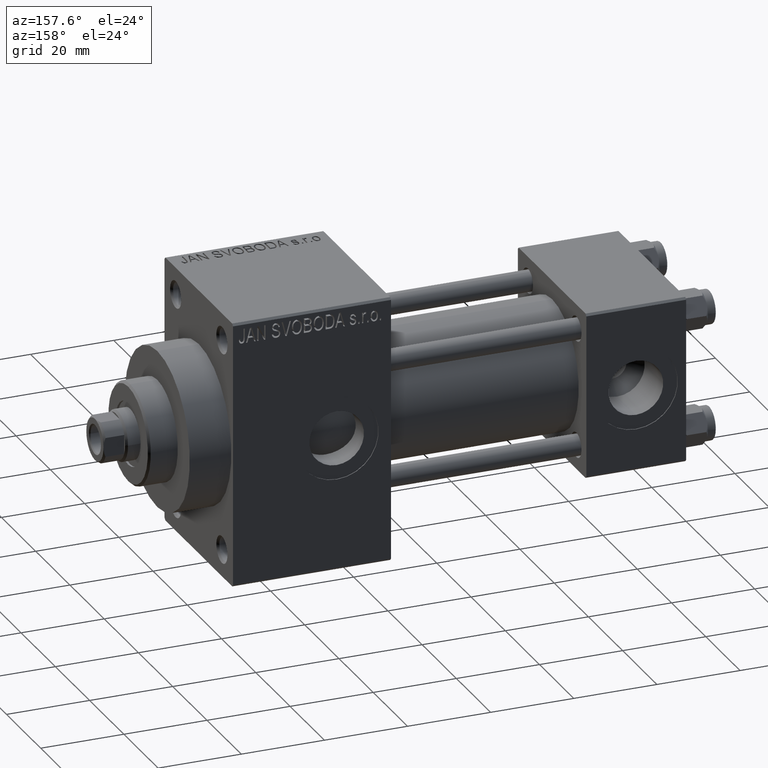
[diagram: clean part render]
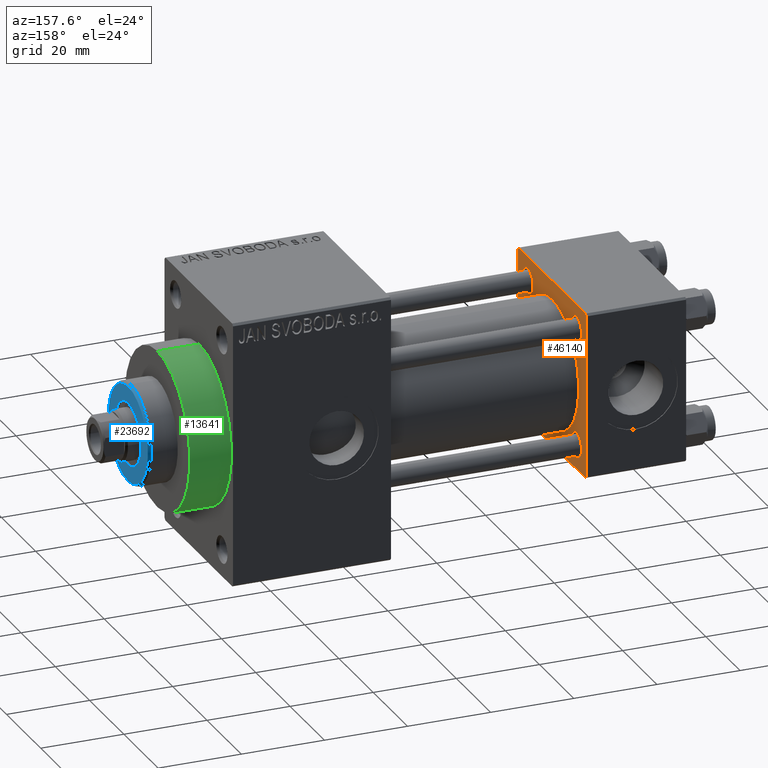
[diagram: same view with three faces highlighted in distinct colors, each labeled with its STEP entity id]
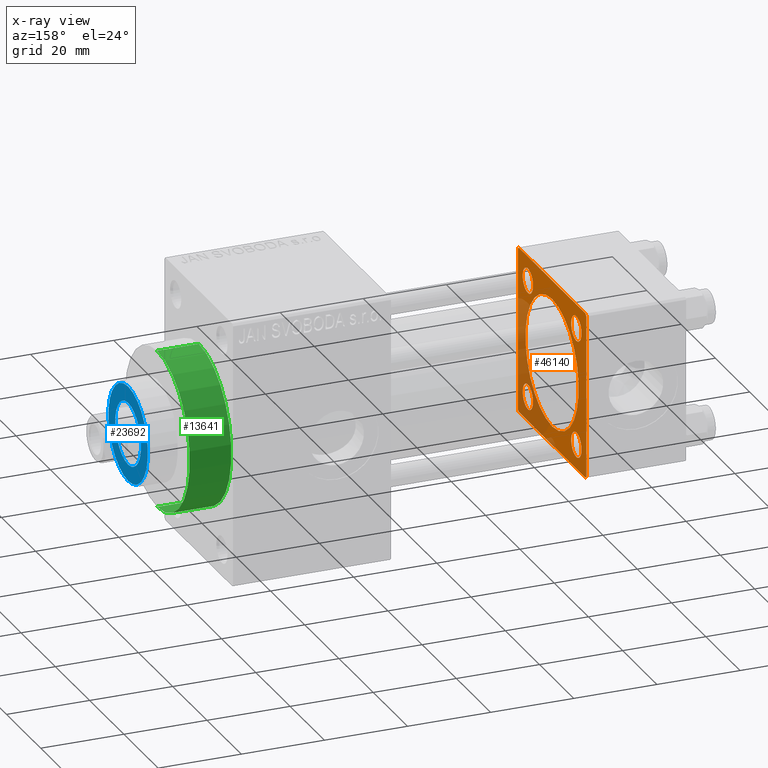
[diagram: x-ray of the same camera — body ghosted, the three highlighted faces saturated]
A machine part, auxiliary view with three faces highlighted in distinct colors.
The next image is the same camera in x-ray (body ghosted, the three faces saturated) — at least one of them is partly hidden behind the body in this view.
Their STEP definitions:

[orange] entity #46140 — the highlighted planar face has unit normal (-1, 0, 0).
#642 = AXIS2_PLACEMENT_3D ( 'NONE', #26358, #27093, #34273 ) ;
#876 = CARTESIAN_POINT ( 'NONE',  ( 24.00000000000000000, -19.50000000000000711, -20.00000000000000000 ) ) ;
#1074 = EDGE_LOOP ( 'NONE', ( #11995, #11273, #36563, #30439, #26081, #22491, #14580, #16509 ) ) ;
#1090 = EDGE_CURVE ( 'NONE', #27260, #27314, #11283, .T. ) ;
#1528 = LINE ( 'NONE', #31810, #29205 ) ;
#1690 = CIRCLE ( 'NONE', #36561, 2.999999999999976463 ) ;
#1835 = EDGE_CURVE ( 'NONE', #24379, #48392, #8549, .T. ) ;
#2393 = EDGE_CURVE ( 'NONE', #18739, #47857, #23599, .T. ) ;
#2764 = ORIENTED_EDGE ( 'NONE', *, *, #5907, .T. ) ;
#3110 = FACE_OUTER_BOUND ( 'NONE', #1074, .T. ) ;
#3144 = ORIENTED_EDGE ( 'NONE', *, *, #14088, .T. ) ;
#3854 = EDGE_LOOP ( 'NONE', ( #28974, #40768 ) ) ;
#4054 = CARTESIAN_POINT ( 'NONE',  ( 24.00000000000000000, 20.00000000000000000, -19.50000000000002132 ) ) ;
#4097 = VERTEX_POINT ( 'NONE', #39836 ) ;
#4169 = CIRCLE ( 'NONE', #25569, 2.999999999999945377 ) ;
#4530 = LINE ( 'NONE', #5020, #5156 ) ;
#5020 = CARTESIAN_POINT ( 'NONE',  ( 24.00000000000000000, -20.00000000000000355, 19.99999999999998934 ) ) ;
#5156 = VECTOR ( 'NONE', #42472, 1000.000000000000000 ) ;
#5586 = DIRECTION ( 'NONE',  ( 0.000000000000000000, 0.000000000000000000, 1.000000000000000000 ) ) ;
#5655 = CARTESIAN_POINT ( 'NONE',  ( 24.00000000000000000, -14.14999999999999503, 17.14999999999998082 ) ) ;
#5879 = DIRECTION ( 'NONE',  ( -1.000000000000000000, -0.000000000000000000, -0.000000000000000000 ) ) ;
#5907 = EDGE_CURVE ( 'NONE', #25212, #13691, #46703, .T. ) ;
#6122 = DIRECTION ( 'NONE',  ( 0.000000000000000000, 0.000000000000000000, 1.000000000000000000 ) ) ;
#6776 = DIRECTION ( 'NONE',  ( 0.000000000000000000, 0.000000000000000000, 1.000000000000000000 ) ) ;
#7031 = CARTESIAN_POINT ( 'NONE',  ( 24.00000000000000000, -14.14999999999999503, 14.15000000000000391 ) ) ;
#7079 = DIRECTION ( 'NONE',  ( -1.000000000000000000, 0.000000000000000000, -0.000000000000000000 ) ) ;
#7548 = CARTESIAN_POINT ( 'NONE',  ( 24.00000000000000000, -20.00000000000000355, 19.49999999999998224 ) ) ;
#7880 = ORIENTED_EDGE ( 'NONE', *, *, #31742, .T. ) ;
#8071 = ORIENTED_EDGE ( 'NONE', *, *, #16762, .T. ) ;
#8549 = CIRCLE ( 'NONE', #13294, 2.999999999999976463 ) ;
#8653 = CARTESIAN_POINT ( 'NONE',  ( 24.00000000000000000, -14.14999999999999503, -14.15000000000000391 ) ) ;
#8922 = VECTOR ( 'NONE', #12259, 1000.000000000000000 ) ;
#8928 = EDGE_CURVE ( 'NONE', #44882, #40334, #38853, .T. ) ;
#9069 = VERTEX_POINT ( 'NONE', #31996 ) ;
#9700 = CARTESIAN_POINT ( 'NONE',  ( 24.00000000000000000, -20.00000000000000000, -19.49999999999999645 ) ) ;
#10384 = DIRECTION ( 'NONE',  ( 0.000000000000000000, -1.000000000000000000, -2.602085213965210149E-16 ) ) ;
#10535 = EDGE_CURVE ( 'NONE', #43814, #18709, #24575, .T. ) ;
#10545 = DIRECTION ( 'NONE',  ( -1.000000000000000000, -0.000000000000000000, -0.000000000000000000 ) ) ;
#10613 = DIRECTION ( 'NONE',  ( -1.000000000000000000, -0.000000000000000000, -0.000000000000000000 ) ) ;
#10686 = AXIS2_PLACEMENT_3D ( 'NONE', #7031, #38019, #19175 ) ;
#10810 = FACE_BOUND ( 'NONE', #17473, .T. ) ;
#10826 = ORIENTED_EDGE ( 'NONE', *, *, #2393, .T. ) ;
#11273 = ORIENTED_EDGE ( 'NONE', *, *, #22901, .T. ) ;
#11283 = LINE ( 'NONE', #7548, #30726 ) ;
#11428 = DIRECTION ( 'NONE',  ( -1.000000000000000000, -0.000000000000000000, -0.000000000000000000 ) ) ;
#11464 = CARTESIAN_POINT ( 'NONE',  ( 24.00000000000000000, 14.14999999999999858, 17.14999999999994884 ) ) ;
#11626 = CARTESIAN_POINT ( 'NONE',  ( 24.00000000000000000, 20.00000000000000000, -20.00000000000000711 ) ) ;
#11995 = ORIENTED_EDGE ( 'NONE', *, *, #25014, .F. ) ;
#12259 = DIRECTION ( 'NONE',  ( -0.000000000000000000, 0.7071067811865524577, 0.7071067811865426878 ) ) ;
#12501 = EDGE_CURVE ( 'NONE', #22727, #27260, #32476, .T. ) ;
#12540 = DIRECTION ( 'NONE',  ( 0.000000000000000000, 0.7071067811865401342, -0.7071067811865549002 ) ) ;
#12631 = CARTESIAN_POINT ( 'NONE',  ( 24.00000000000000000, 14.14999999999999858, -11.15000000000005365 ) ) ;
#13294 = AXIS2_PLACEMENT_3D ( 'NONE', #21047, #28739, #36169 ) ;
#13333 = CARTESIAN_POINT ( 'NONE',  ( 24.00000000000000000, 14.14999999999999858, -17.14999999999994884 ) ) ;
#13572 = CIRCLE ( 'NONE', #40489, 2.999999999999945377 ) ;
#13691 = VERTEX_POINT ( 'NONE', #12631 ) ;
#13738 = VECTOR ( 'NONE', #49055, 1000.000000000000000 ) ;
#14088 = EDGE_CURVE ( 'NONE', #47857, #18739, #13572, .T. ) ;
#14351 = EDGE_CURVE ( 'NONE', #30660, #22727, #44396, .T. ) ;
#14580 = ORIENTED_EDGE ( 'NONE', *, *, #31779, .T. ) ;
#14604 = CARTESIAN_POINT ( 'NONE',  ( 24.00000000000000000, 20.00000000000000000, 20.00000000000000000 ) ) ;
#15980 = VECTOR ( 'NONE', #17865, 999.9999999999998863 ) ;
#16509 = ORIENTED_EDGE ( 'NONE', *, *, #37902, .T. ) ;
#16762 = EDGE_CURVE ( 'NONE', #13691, #25212, #4169, .T. ) ;
#17473 = EDGE_LOOP ( 'NONE', ( #2764, #8071 ) ) ;
#17865 = DIRECTION ( 'NONE',  ( 0.000000000000000000, -0.7071067811865425767, 0.7071067811865525687 ) ) ;
#18225 = CARTESIAN_POINT ( 'NONE',  ( 24.00000000000000000, 19.50000000000000000, 20.00000000000000000 ) ) ;
#18709 = VERTEX_POINT ( 'NONE', #35348 ) ;
#18733 = FACE_BOUND ( 'NONE', #3854, .T. ) ;
#18739 = VERTEX_POINT ( 'NONE', #28404 ) ;
#19175 = DIRECTION ( 'NONE',  ( 0.000000000000000000, 0.000000000000000000, 1.000000000000000000 ) ) ;
#19678 = DIRECTION ( 'NONE',  ( 1.000000000000000000, 0.000000000000000000, 0.000000000000000000 ) ) ;
#19922 = CARTESIAN_POINT ( 'NONE',  ( 24.00000000000000000, -2.602085213965210642E-15, 0.000000000000000000 ) ) ;
#20668 = EDGE_CURVE ( 'NONE', #40334, #44882, #1690, .T. ) ;
#21047 = CARTESIAN_POINT ( 'NONE',  ( 24.00000000000000000, -14.14999999999999503, 14.15000000000000391 ) ) ;
#21465 = CARTESIAN_POINT ( 'NONE',  ( 24.00000000000000000, 14.14999999999999858, 14.15000000000000036 ) ) ;
#22458 = FACE_BOUND ( 'NONE', #42213, .T. ) ;
#22491 = ORIENTED_EDGE ( 'NONE', *, *, #1090, .T. ) ;
#22706 = ORIENTED_EDGE ( 'NONE', *, *, #1835, .T. ) ;
#22727 = VERTEX_POINT ( 'NONE', #18225 ) ;
#22901 = EDGE_CURVE ( 'NONE', #28336, #9069, #38040, .T. ) ;
#23077 = CARTESIAN_POINT ( 'NONE',  ( 24.00000000000000000, -14.14999999999999503, -14.15000000000000391 ) ) ;
#23599 = CIRCLE ( 'NONE', #642, 2.999999999999945377 ) ;
#23790 = DIRECTION ( 'NONE',  ( -1.000000000000000000, -0.000000000000000000, -0.000000000000000000 ) ) ;
#24379 = VERTEX_POINT ( 'NONE', #35113 ) ;
#24575 = CIRCLE ( 'NONE', #35653, 15.50000000000000000 ) ;
#25014 = EDGE_CURVE ( 'NONE', #28336, #4097, #41370, .T. ) ;
#25184 = DIRECTION ( 'NONE',  ( 0.000000000000000000, 0.000000000000000000, 1.000000000000000000 ) ) ;
#25212 = VERTEX_POINT ( 'NONE', #13333 ) ;
#25569 = AXIS2_PLACEMENT_3D ( 'NONE', #39862, #5879, #6122 ) ;
#25710 = EDGE_CURVE ( 'NONE', #18709, #43814, #38333, .T. ) ;
#25949 = FACE_BOUND ( 'NONE', #30844, .T. ) ;
#26081 = ORIENTED_EDGE ( 'NONE', *, *, #12501, .T. ) ;
#26358 = CARTESIAN_POINT ( 'NONE',  ( 24.00000000000000000, 14.14999999999999858, 14.15000000000000036 ) ) ;
#26418 = DIRECTION ( 'NONE',  ( -0.000000000000000000, -0.7071067811865500152, -0.7071067811865451302 ) ) ;
#27093 = DIRECTION ( 'NONE',  ( -1.000000000000000000, -0.000000000000000000, -0.000000000000000000 ) ) ;
#27260 = VERTEX_POINT ( 'NONE', #40691 ) ;
#27314 = VERTEX_POINT ( 'NONE', #30295 ) ;
#27423 = CARTESIAN_POINT ( 'NONE',  ( 24.00000000000000000, 20.00000000000000000, 19.49999999999999289 ) ) ;
#27911 = LINE ( 'NONE', #876, #41778 ) ;
#28086 = DIRECTION ( 'NONE',  ( 0.000000000000000000, 0.000000000000000000, -1.000000000000000000 ) ) ;
#28336 = VERTEX_POINT ( 'NONE', #33214 ) ;
#28404 = CARTESIAN_POINT ( 'NONE',  ( 24.00000000000000000, 14.14999999999999858, 11.15000000000005365 ) ) ;
#28739 = DIRECTION ( 'NONE',  ( -1.000000000000000000, -0.000000000000000000, -0.000000000000000000 ) ) ;
#28974 = ORIENTED_EDGE ( 'NONE', *, *, #8928, .T. ) ;
#29039 = CARTESIAN_POINT ( 'NONE',  ( 24.00000000000000000, -14.14999999999999503, -17.14999999999998082 ) ) ;
#29205 = VECTOR ( 'NONE', #28086, 1000.000000000000000 ) ;
#29672 = PLANE ( 'NONE',  #37225 ) ;
#30157 = AXIS2_PLACEMENT_3D ( 'NONE', #23077, #11428, #6776 ) ;
#30231 = VERTEX_POINT ( 'NONE', #9700 ) ;
#30295 = CARTESIAN_POINT ( 'NONE',  ( 24.00000000000000000, -20.00000000000000355, 19.49999999999998224 ) ) ;
#30424 = AXIS2_PLACEMENT_3D ( 'NONE', #19922, #19678, #34803 ) ;
#30439 = ORIENTED_EDGE ( 'NONE', *, *, #14351, .T. ) ;
#30528 = CIRCLE ( 'NONE', #10686, 2.999999999999976463 ) ;
#30660 = VERTEX_POINT ( 'NONE', #27423 ) ;
#30726 = VECTOR ( 'NONE', #26418, 1000.000000000000114 ) ;
#30844 = EDGE_LOOP ( 'NONE', ( #48253, #33347 ) ) ;
#31742 = EDGE_CURVE ( 'NONE', #48392, #24379, #30528, .T. ) ;
#31779 = EDGE_CURVE ( 'NONE', #27314, #30231, #4530, .T. ) ;
#31810 = CARTESIAN_POINT ( 'NONE',  ( 24.00000000000000000, 20.00000000000000000, 20.00000000000000000 ) ) ;
#31996 = CARTESIAN_POINT ( 'NONE',  ( 24.00000000000000000, 20.00000000000000000, -19.50000000000002132 ) ) ;
#32476 = LINE ( 'NONE', #14604, #36495 ) ;
#33214 = CARTESIAN_POINT ( 'NONE',  ( 24.00000000000000000, 19.50000000000000711, -20.00000000000000711 ) ) ;
#33347 = ORIENTED_EDGE ( 'NONE', *, *, #25710, .F. ) ;
#33431 = CARTESIAN_POINT ( 'NONE',  ( 24.00000000000000000, 14.14999999999999858, -14.15000000000000036 ) ) ;
#34273 = DIRECTION ( 'NONE',  ( 0.000000000000000000, 0.000000000000000000, 1.000000000000000000 ) ) ;
#34803 = DIRECTION ( 'NONE',  ( 0.000000000000000000, 0.000000000000000000, 1.000000000000000000 ) ) ;
#35113 = CARTESIAN_POINT ( 'NONE',  ( 24.00000000000000000, -14.14999999999999503, 11.15000000000002878 ) ) ;
#35348 = CARTESIAN_POINT ( 'NONE',  ( 24.00000000000000000, -7.038826752868131828E-16, -15.50000000000000000 ) ) ;
#35624 = AXIS2_PLACEMENT_3D ( 'NONE', #33431, #10613, #37394 ) ;
#35653 = AXIS2_PLACEMENT_3D ( 'NONE', #39159, #38676, #41886 ) ;
#36076 = EDGE_LOOP ( 'NONE', ( #10826, #3144 ) ) ;
#36169 = DIRECTION ( 'NONE',  ( 0.000000000000000000, 0.000000000000000000, 1.000000000000000000 ) ) ;
#36495 = VECTOR ( 'NONE', #10384, 1000.000000000000000 ) ;
#36561 = AXIS2_PLACEMENT_3D ( 'NONE', #8653, #23790, #5586 ) ;
#36563 = ORIENTED_EDGE ( 'NONE', *, *, #39705, .F. ) ;
#37225 = AXIS2_PLACEMENT_3D ( 'NONE', #37579, #7079, #38065 ) ;
#37394 = DIRECTION ( 'NONE',  ( 0.000000000000000000, 0.000000000000000000, 1.000000000000000000 ) ) ;
#37579 = CARTESIAN_POINT ( 'NONE',  ( 24.00000000000000000, 0.000000000000000000, 0.000000000000000000 ) ) ;
#37692 = CARTESIAN_POINT ( 'NONE',  ( 24.00000000000000000, 19.50000000000000000, 20.00000000000000000 ) ) ;
#37902 = EDGE_CURVE ( 'NONE', #30231, #4097, #27911, .T. ) ;
#38019 = DIRECTION ( 'NONE',  ( -1.000000000000000000, -0.000000000000000000, -0.000000000000000000 ) ) ;
#38040 = LINE ( 'NONE', #4054, #8922 ) ;
#38065 = DIRECTION ( 'NONE',  ( -0.000000000000000000, 0.000000000000000000, 1.000000000000000000 ) ) ;
#38333 = CIRCLE ( 'NONE', #30424, 15.50000000000000000 ) ;
#38676 = DIRECTION ( 'NONE',  ( 1.000000000000000000, 0.000000000000000000, 0.000000000000000000 ) ) ;
#38853 = CIRCLE ( 'NONE', #30157, 2.999999999999976463 ) ;
#39159 = CARTESIAN_POINT ( 'NONE',  ( 24.00000000000000000, -2.602085213965210642E-15, 0.000000000000000000 ) ) ;
#39705 = EDGE_CURVE ( 'NONE', #30660, #9069, #1528, .T. ) ;
#39836 = CARTESIAN_POINT ( 'NONE',  ( 24.00000000000000000, -19.50000000000000711, -20.00000000000000000 ) ) ;
#39862 = CARTESIAN_POINT ( 'NONE',  ( 24.00000000000000000, 14.14999999999999858, -14.15000000000000036 ) ) ;
#40334 = VERTEX_POINT ( 'NONE', #46736 ) ;
#40489 = AXIS2_PLACEMENT_3D ( 'NONE', #21465, #10545, #25184 ) ;
#40691 = CARTESIAN_POINT ( 'NONE',  ( 24.00000000000000000, -19.49999999999999289, 19.99999999999998934 ) ) ;
#40768 = ORIENTED_EDGE ( 'NONE', *, *, #20668, .T. ) ;
#41053 = FACE_BOUND ( 'NONE', #36076, .T. ) ;
#41370 = LINE ( 'NONE', #11626, #13738 ) ;
#41415 = CARTESIAN_POINT ( 'NONE',  ( 24.00000000000000000, -2.602085213965210642E-15, 15.50000000000000000 ) ) ;
#41778 = VECTOR ( 'NONE', #12540, 1000.000000000000000 ) ;
#41886 = DIRECTION ( 'NONE',  ( 0.000000000000000000, 0.000000000000000000, 1.000000000000000000 ) ) ;
#42213 = EDGE_LOOP ( 'NONE', ( #22706, #7880 ) ) ;
#42472 = DIRECTION ( 'NONE',  ( 0.000000000000000000, 8.673617379884036705E-17, -1.000000000000000000 ) ) ;
#43814 = VERTEX_POINT ( 'NONE', #41415 ) ;
#44396 = LINE ( 'NONE', #37692, #15980 ) ;
#44882 = VERTEX_POINT ( 'NONE', #29039 ) ;
#46140 = ADVANCED_FACE ( 'NONE', ( #18733, #10810, #22458, #41053, #25949, #3110 ), #29672, .F. ) ;
#46703 = CIRCLE ( 'NONE', #35624, 2.999999999999945377 ) ;
#46736 = CARTESIAN_POINT ( 'NONE',  ( 24.00000000000000000, -14.14999999999999503, -11.15000000000002878 ) ) ;
#47857 = VERTEX_POINT ( 'NONE', #11464 ) ;
#48253 = ORIENTED_EDGE ( 'NONE', *, *, #10535, .F. ) ;
#48392 = VERTEX_POINT ( 'NONE', #5655 ) ;
#49055 = DIRECTION ( 'NONE',  ( 0.000000000000000000, -1.000000000000000000, 1.734723475976807094E-16 ) ) ;

[blue] entity #23692 — the highlighted planar face has unit normal (1, -0, -0).
#77 = VERTEX_POINT ( 'NONE', #36578 ) ;
#220 = ORIENTED_EDGE ( 'NONE', *, *, #40953, .F. ) ;
#548 = DIRECTION ( 'NONE',  ( 0.000000000000000000, 0.000000000000000000, 1.000000000000000000 ) ) ;
#1792 = AXIS2_PLACEMENT_3D ( 'NONE', #35547, #9253, #36035 ) ;
#5769 = FACE_OUTER_BOUND ( 'NONE', #21940, .T. ) ;
#6168 = DIRECTION ( 'NONE',  ( 1.000000000000000000, 0.000000000000000000, 0.000000000000000000 ) ) ;
#9253 = DIRECTION ( 'NONE',  ( 0.000000000000000000, 0.000000000000000000, 1.000000000000000000 ) ) ;
#9890 = CARTESIAN_POINT ( 'NONE',  ( 0.000000000000000000, 0.000000000000000000, 50.25999999999999801 ) ) ;
#9984 = PLANE ( 'NONE',  #1792 ) ;
#11441 = ORIENTED_EDGE ( 'NONE', *, *, #24959, .T. ) ;
#11720 = CARTESIAN_POINT ( 'NONE',  ( 0.000000000000000000, 0.000000000000000000, 50.25999999999999801 ) ) ;
#12539 = ORIENTED_EDGE ( 'NONE', *, *, #23732, .T. ) ;
#14951 = DIRECTION ( 'NONE',  ( 1.000000000000000000, 0.000000000000000000, 0.000000000000000000 ) ) ;
#15383 = EDGE_CURVE ( 'NONE', #77, #26401, #46098, .T. ) ;
#16092 = CIRCLE ( 'NONE', #29543, 11.50000000000000355 ) ;
#16129 = AXIS2_PLACEMENT_3D ( 'NONE', #9890, #40148, #6168 ) ;
#16876 = ORIENTED_EDGE ( 'NONE', *, *, #15383, .F. ) ;
#20587 = DIRECTION ( 'NONE',  ( 0.000000000000000000, 0.000000000000000000, 1.000000000000000000 ) ) ;
#21771 = CARTESIAN_POINT ( 'NONE',  ( 11.50000000000000355, 1.438959988998140357E-15, 50.25999999999999801 ) ) ;
#21940 = EDGE_LOOP ( 'NONE', ( #12539, #11441 ) ) ;
#23692 = ADVANCED_FACE ( 'NONE', ( #43961, #5769 ), #9984, .T. ) ;
#23732 = EDGE_CURVE ( 'NONE', #41844, #35402, #16092, .T. ) ;
#24546 = CARTESIAN_POINT ( 'NONE',  ( 0.000000000000000000, 0.000000000000000000, 50.25999999999999801 ) ) ;
#24959 = EDGE_CURVE ( 'NONE', #35402, #41844, #29615, .T. ) ;
#26401 = VERTEX_POINT ( 'NONE', #47476 ) ;
#29543 = AXIS2_PLACEMENT_3D ( 'NONE', #47433, #31607, #31849 ) ;
#29615 = CIRCLE ( 'NONE', #16129, 11.50000000000000355 ) ;
#30056 = CIRCLE ( 'NONE', #39526, 7.500000000000000888 ) ;
#30265 = CARTESIAN_POINT ( 'NONE',  ( -11.50000000000000355, 0.000000000000000000, 50.25999999999999801 ) ) ;
#31072 = AXIS2_PLACEMENT_3D ( 'NONE', #11720, #548, #14951 ) ;
#31607 = DIRECTION ( 'NONE',  ( 0.000000000000000000, 0.000000000000000000, 1.000000000000000000 ) ) ;
#31849 = DIRECTION ( 'NONE',  ( 1.000000000000000000, 0.000000000000000000, 0.000000000000000000 ) ) ;
#34064 = EDGE_LOOP ( 'NONE', ( #16876, #220 ) ) ;
#35402 = VERTEX_POINT ( 'NONE', #21771 ) ;
#35547 = CARTESIAN_POINT ( 'NONE',  ( 0.000000000000000000, 0.000000000000000000, 50.25999999999999801 ) ) ;
#36035 = DIRECTION ( 'NONE',  ( 1.000000000000000000, 0.000000000000000000, -0.000000000000000000 ) ) ;
#36578 = CARTESIAN_POINT ( 'NONE',  ( 7.500000000000000888, 0.000000000000000000, 50.25999999999999801 ) ) ;
#39526 = AXIS2_PLACEMENT_3D ( 'NONE', #24546, #20587, #39667 ) ;
#39667 = DIRECTION ( 'NONE',  ( 1.000000000000000000, 0.000000000000000000, 0.000000000000000000 ) ) ;
#40148 = DIRECTION ( 'NONE',  ( 0.000000000000000000, 0.000000000000000000, 1.000000000000000000 ) ) ;
#40953 = EDGE_CURVE ( 'NONE', #26401, #77, #30056, .T. ) ;
#41844 = VERTEX_POINT ( 'NONE', #30265 ) ;
#43961 = FACE_BOUND ( 'NONE', #34064, .T. ) ;
#46098 = CIRCLE ( 'NONE', #31072, 7.500000000000000888 ) ;
#47433 = CARTESIAN_POINT ( 'NONE',  ( 0.000000000000000000, 0.000000000000000000, 50.25999999999999801 ) ) ;
#47476 = CARTESIAN_POINT ( 'NONE',  ( -7.500000000000000888, 9.184850993605149917E-16, 50.25999999999999801 ) ) ;

[green] entity #13641 — the highlighted cylindrical surface (partial cylindrical patch) has radius 19 mm, axis along (-1, -0, -0).
#685 = EDGE_CURVE ( 'NONE', #14717, #29012, #48777, .T. ) ;
#808 = VECTOR ( 'NONE', #16973, 1000.000000000000000 ) ;
#2309 = DIRECTION ( 'NONE',  ( 0.000000000000000000, 0.000000000000000000, -1.000000000000000000 ) ) ;
#5887 = FACE_OUTER_BOUND ( 'NONE', #13217, .T. ) ;
#6837 = DIRECTION ( 'NONE',  ( 0.000000000000000000, 0.000000000000000000, -1.000000000000000000 ) ) ;
#7329 = EDGE_CURVE ( 'NONE', #29012, #41087, #12700, .T. ) ;
#9266 = CARTESIAN_POINT ( 'NONE',  ( 119.0000000000000142, 0.000000000000000000, 19.00000000000000000 ) ) ;
#10000 = DIRECTION ( 'NONE',  ( 1.000000000000000000, 0.000000000000000000, 0.000000000000000000 ) ) ;
#11638 = VERTEX_POINT ( 'NONE', #16067 ) ;
#12700 = CIRCLE ( 'NONE', #35657, 19.00000000000000000 ) ;
#13217 = EDGE_LOOP ( 'NONE', ( #46557, #38893, #41122, #30980 ) ) ;
#13343 = CIRCLE ( 'NONE', #41050, 19.00000000000000000 ) ;
#13641 = ADVANCED_FACE ( 'NONE', ( #5887 ), #20070, .T. ) ;
#14538 = DIRECTION ( 'NONE',  ( 1.000000000000000000, 0.000000000000000000, 0.000000000000000000 ) ) ;
#14717 = VERTEX_POINT ( 'NONE', #45070 ) ;
#15160 = AXIS2_PLACEMENT_3D ( 'NONE', #47070, #21031, #31489 ) ;
#16067 = CARTESIAN_POINT ( 'NONE',  ( 119.0000000000000142, 0.000000000000000000, 19.00000000000000000 ) ) ;
#16973 = DIRECTION ( 'NONE',  ( -1.000000000000000000, -0.000000000000000000, -0.000000000000000000 ) ) ;
#17480 = CARTESIAN_POINT ( 'NONE',  ( 109.0000000000000142, 2.326828918379970970E-15, -19.00000000000000000 ) ) ;
#20070 = CYLINDRICAL_SURFACE ( 'NONE', #15160, 19.00000000000000000 ) ;
#21031 = DIRECTION ( 'NONE',  ( -1.000000000000000000, -0.000000000000000000, -0.000000000000000000 ) ) ;
#25703 = CARTESIAN_POINT ( 'NONE',  ( 109.0000000000000142, 0.000000000000000000, 0.000000000000000000 ) ) ;
#28144 = CARTESIAN_POINT ( 'NONE',  ( 119.0000000000000142, 0.000000000000000000, 0.000000000000000000 ) ) ;
#28380 = LINE ( 'NONE', #9266, #808 ) ;
#29012 = VERTEX_POINT ( 'NONE', #17480 ) ;
#30980 = ORIENTED_EDGE ( 'NONE', *, *, #43363, .F. ) ;
#31489 = DIRECTION ( 'NONE',  ( 0.000000000000000000, 0.000000000000000000, 1.000000000000000000 ) ) ;
#32937 = CARTESIAN_POINT ( 'NONE',  ( 119.0000000000000142, 2.326828918379970970E-15, -19.00000000000000000 ) ) ;
#35657 = AXIS2_PLACEMENT_3D ( 'NONE', #25703, #14538, #6837 ) ;
#37812 = VECTOR ( 'NONE', #44329, 1000.000000000000000 ) ;
#38893 = ORIENTED_EDGE ( 'NONE', *, *, #685, .T. ) ;
#39275 = EDGE_CURVE ( 'NONE', #14717, #11638, #13343, .T. ) ;
#41050 = AXIS2_PLACEMENT_3D ( 'NONE', #28144, #10000, #2309 ) ;
#41087 = VERTEX_POINT ( 'NONE', #48808 ) ;
#41122 = ORIENTED_EDGE ( 'NONE', *, *, #7329, .T. ) ;
#43363 = EDGE_CURVE ( 'NONE', #11638, #41087, #28380, .T. ) ;
#44329 = DIRECTION ( 'NONE',  ( -1.000000000000000000, -0.000000000000000000, -0.000000000000000000 ) ) ;
#45070 = CARTESIAN_POINT ( 'NONE',  ( 119.0000000000000142, 2.326828918379970970E-15, -19.00000000000000000 ) ) ;
#46557 = ORIENTED_EDGE ( 'NONE', *, *, #39275, .F. ) ;
#47070 = CARTESIAN_POINT ( 'NONE',  ( 119.0000000000000142, 0.000000000000000000, 0.000000000000000000 ) ) ;
#48777 = LINE ( 'NONE', #32937, #37812 ) ;
#48808 = CARTESIAN_POINT ( 'NONE',  ( 109.0000000000000142, 0.000000000000000000, 19.00000000000000000 ) ) ;